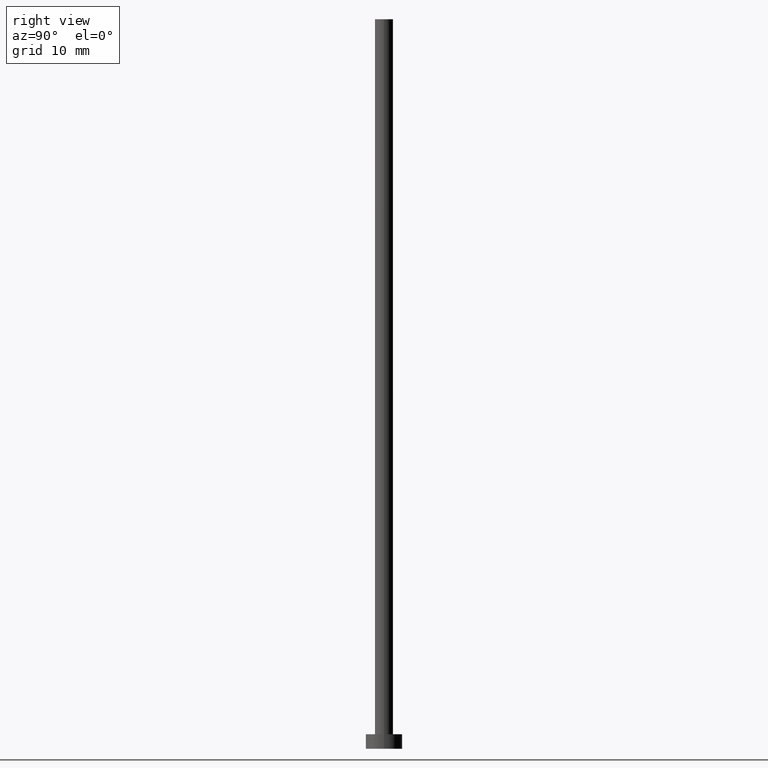
[diagram: clean part render]
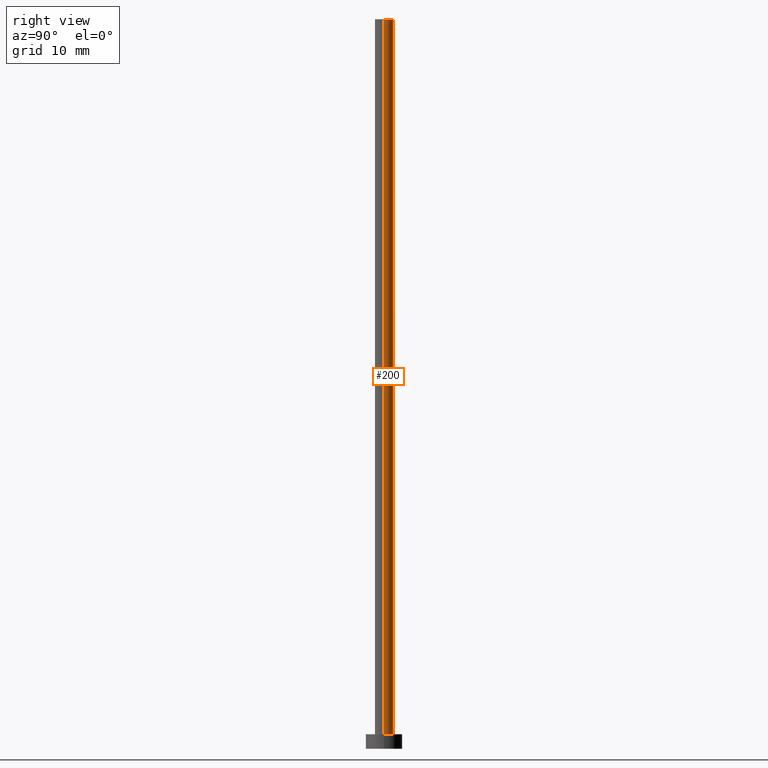
[diagram: same view with one face highlighted and labeled with its STEP entity id]
A machine part, right view. The second image highlights one B-rep face of the part: STEP entity #200.
In plain terms, the highlighted cylindrical surface (edge-blend (fillet) strip) has radius 1.25 mm, axis along (-0, -0, -1).
Its self-contained STEP definition (entity closure, byte-faithful):
#2 = CARTESIAN_POINT ( 'NONE',  ( 1.250000000000000000, 1.530808498934191571E-16, 100.0000000000000000 ) ) ;
#3 = CARTESIAN_POINT ( 'NONE',  ( 0.000000000000000000, 0.000000000000000000, 100.0000000000000000 ) ) ;
#12 = VERTEX_POINT ( 'NONE', #129 ) ;
#22 = CARTESIAN_POINT ( 'NONE',  ( 0.000000000000000000, 0.000000000000000000, 100.0000000000000000 ) ) ;
#28 = VECTOR ( 'NONE', #140, 1000.000000000000000 ) ;
#43 = DIRECTION ( 'NONE',  ( -0.000000000000000000, -0.000000000000000000, -1.000000000000000000 ) ) ;
#44 = CARTESIAN_POINT ( 'NONE',  ( -1.250000000000000000, 0.000000000000000000, 100.0000000000000000 ) ) ;
#57 = VERTEX_POINT ( 'NONE', #168 ) ;
#60 = DIRECTION ( 'NONE',  ( 1.000000000000000000, 0.000000000000000000, 0.000000000000000000 ) ) ;
#63 = DIRECTION ( 'NONE',  ( 0.000000000000000000, 0.000000000000000000, 1.000000000000000000 ) ) ;
#71 = CIRCLE ( 'NONE', #76, 1.250000000000000000 ) ;
#75 = ORIENTED_EDGE ( 'NONE', *, *, #212, .F. ) ;
#76 = AXIS2_PLACEMENT_3D ( 'NONE', #120, #198, #60 ) ;
#89 = DIRECTION ( 'NONE',  ( -1.000000000000000000, 0.000000000000000000, 0.000000000000000000 ) ) ;
#100 = VERTEX_POINT ( 'NONE', #123 ) ;
#107 = DIRECTION ( 'NONE',  ( 1.000000000000000000, 0.000000000000000000, 0.000000000000000000 ) ) ;
#113 = EDGE_LOOP ( 'NONE', ( #75, #115, #230, #192 ) ) ;
#115 = ORIENTED_EDGE ( 'NONE', *, *, #190, .T. ) ;
#118 = VERTEX_POINT ( 'NONE', #2 ) ;
#120 = CARTESIAN_POINT ( 'NONE',  ( 0.000000000000000000, 0.000000000000000000, 2.000000000000000000 ) ) ;
#123 = CARTESIAN_POINT ( 'NONE',  ( -1.250000000000000000, 0.000000000000000000, 2.000000000000000000 ) ) ;
#129 = CARTESIAN_POINT ( 'NONE',  ( -1.250000000000000000, 0.000000000000000000, 100.0000000000000000 ) ) ;
#133 = AXIS2_PLACEMENT_3D ( 'NONE', #22, #43, #89 ) ;
#140 = DIRECTION ( 'NONE',  ( -0.000000000000000000, -0.000000000000000000, -1.000000000000000000 ) ) ;
#151 = EDGE_CURVE ( 'NONE', #12, #100, #237, .T. ) ;
#157 = FACE_OUTER_BOUND ( 'NONE', #113, .T. ) ;
#158 = CIRCLE ( 'NONE', #203, 1.250000000000000000 ) ;
#168 = CARTESIAN_POINT ( 'NONE',  ( 1.250000000000000000, 1.530808498934191571E-16, 2.000000000000000000 ) ) ;
#174 = DIRECTION ( 'NONE',  ( -0.000000000000000000, -0.000000000000000000, -1.000000000000000000 ) ) ;
#178 = LINE ( 'NONE', #196, #28 ) ;
#190 = EDGE_CURVE ( 'NONE', #118, #57, #178, .T. ) ;
#192 = ORIENTED_EDGE ( 'NONE', *, *, #151, .F. ) ;
#196 = CARTESIAN_POINT ( 'NONE',  ( 1.250000000000000000, 1.530808498934191571E-16, 100.0000000000000000 ) ) ;
#198 = DIRECTION ( 'NONE',  ( 0.000000000000000000, 0.000000000000000000, 1.000000000000000000 ) ) ;
#200 = ADVANCED_FACE ( 'NONE', ( #157 ), #220, .T. ) ;
#203 = AXIS2_PLACEMENT_3D ( 'NONE', #3, #63, #107 ) ;
#205 = EDGE_CURVE ( 'NONE', #57, #100, #71, .T. ) ;
#212 = EDGE_CURVE ( 'NONE', #118, #12, #158, .T. ) ;
#220 = CYLINDRICAL_SURFACE ( 'NONE', #133, 1.250000000000000000 ) ;
#230 = ORIENTED_EDGE ( 'NONE', *, *, #205, .T. ) ;
#237 = LINE ( 'NONE', #44, #253 ) ;
#253 = VECTOR ( 'NONE', #174, 1000.000000000000000 ) ;